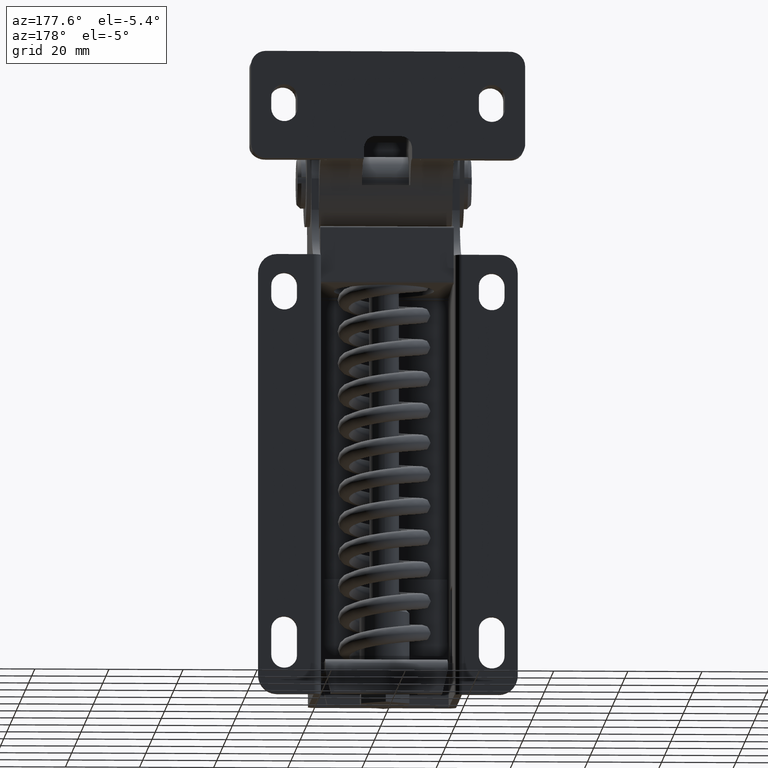
[diagram: clean part render]
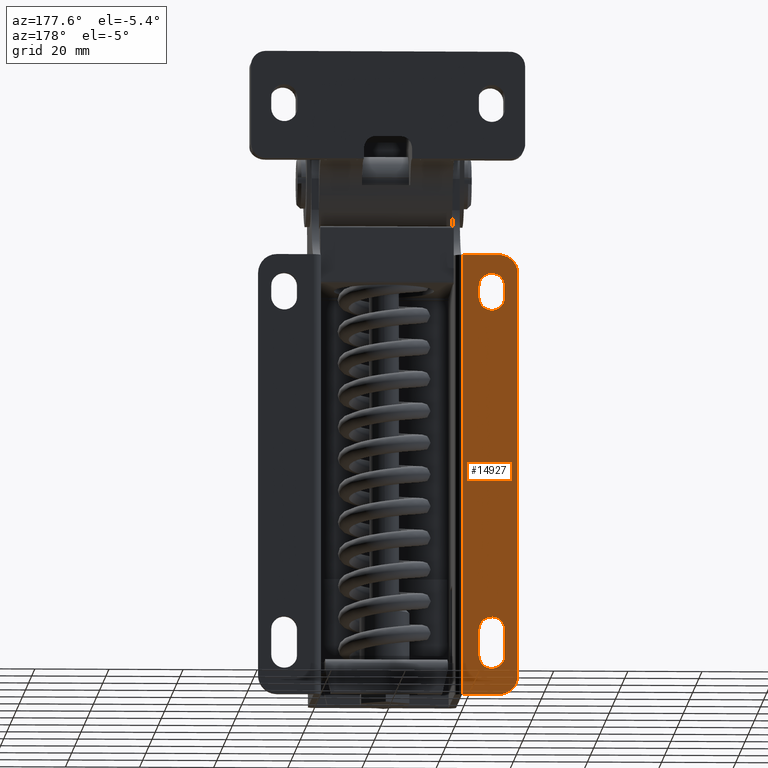
[diagram: same view with one face highlighted and labeled with its STEP entity id]
A machine part, auxiliary view. The second image highlights one B-rep face of the part: STEP entity #14927.
In plain terms, the highlighted face is a freeform B-spline surface patch.
Its self-contained STEP definition (entity closure, byte-faithful):
#13039=CARTESIAN_POINT('',(-20.0,28.000022946517149,-22.0));
#13040=VERTEX_POINT('',#13039);
#13061=CARTESIAN_POINT('',(-20.0,28.000022946517149,-140.999985000000010));
#13062=VERTEX_POINT('',#13061);
#13076=CARTESIAN_POINT('',(-20.0,28.000022946517149,-22.0));
#13077=CARTESIAN_POINT('',(-20.0,28.000022946517149,-140.999985000000010));
#13078=QUASI_UNIFORM_CURVE('',1,(#13076,#13077),.UNSPECIFIED.,.F.,.U.);
#13079=EDGE_CURVE('',#13040,#13062,#13078,.T.);
#13400=CARTESIAN_POINT('',(-30.0,28.000022946517149,-22.0));
#13401=VERTEX_POINT('',#13400);
#13407=CARTESIAN_POINT('',(-35.0,28.000022946517149,-27.0));
#13408=VERTEX_POINT('',#13407);
#13409=CARTESIAN_POINT('',(-34.999999999999993,28.000022946517149,-27.0));
#13410=CARTESIAN_POINT('',(-34.999999999999993,28.000022946517159,-22.000000000000007));
#13411=CARTESIAN_POINT('',(-30.0,28.000022946517149,-22.0));
#13419=(BOUNDED_CURVE()B_SPLINE_CURVE(2,(#13409,#13410,#13411),.UNSPECIFIED.,.F.,.U.)CURVE()GEOMETRIC_REPRESENTATION_ITEM()QUASI_UNIFORM_CURVE()RATIONAL_B_SPLINE_CURVE((1.0,0.707106781186548,1.0))REPRESENTATION_ITEM(''));
#13420=EDGE_CURVE('',#13408,#13401,#13419,.T.);
#13461=CARTESIAN_POINT('',(-35.0,28.000022946517149,-135.999985000000010));
#13462=VERTEX_POINT('',#13461);
#13468=CARTESIAN_POINT('',(-30.0,28.000022946517149,-140.999985000000010));
#13469=VERTEX_POINT('',#13468);
#13470=CARTESIAN_POINT('',(-30.0,28.000022946517149,-140.999985000000010));
#13471=CARTESIAN_POINT('',(-34.999999999999993,28.000022946517159,-140.999984999999980));
#13472=CARTESIAN_POINT('',(-34.999999999999993,28.000022946517149,-135.999985000000010));
#13480=(BOUNDED_CURVE()B_SPLINE_CURVE(2,(#13470,#13471,#13472),.UNSPECIFIED.,.F.,.U.)CURVE()GEOMETRIC_REPRESENTATION_ITEM()QUASI_UNIFORM_CURVE()RATIONAL_B_SPLINE_CURVE((1.0,0.707106781186548,1.0))REPRESENTATION_ITEM(''));
#13481=EDGE_CURVE('',#13469,#13462,#13480,.T.);
#13850=CARTESIAN_POINT('',(-24.500000000000000,28.000022946517149,-33.499999389134750));
#13851=VERTEX_POINT('',#13850);
#13857=CARTESIAN_POINT('',(-31.500000000000000,28.000022946517149,-33.500000000000000));
#13858=VERTEX_POINT('',#13857);
#13859=CARTESIAN_POINT('',(-31.500000000000000,28.000022946517149,-33.500000000000000));
#13860=CARTESIAN_POINT('',(-31.500000000000000,28.000022946517149,-35.520726077911526));
#13861=CARTESIAN_POINT('',(-29.749999823658388,28.000022946517149,-36.531089015056402));
#13862=CARTESIAN_POINT('',(-27.999999647316777,28.000022946517149,-37.541451952201285));
#13863=CARTESIAN_POINT('',(-26.249999647316798,28.000022946517149,-36.531088709623774));
#13864=CARTESIAN_POINT('',(-24.499999647316809,28.000022946517149,-35.520725467046248));
#13865=CARTESIAN_POINT('',(-24.500000000000050,28.000022946517149,-33.499999389134750));
#13873=(BOUNDED_CURVE()B_SPLINE_CURVE(2,(#13859,#13860,#13861,#13862,#13863,#13864,#13865),.UNSPECIFIED.,.F.,.U.)B_SPLINE_CURVE_WITH_KNOTS((3,2,2,3),(0.0,0.333333333333333,0.666666666666667,1.0),.UNSPECIFIED.)CURVE()GEOMETRIC_REPRESENTATION_ITEM()RATIONAL_B_SPLINE_CURVE((1.0,0.866025389240028,1.0,0.866025389240028,1.0,0.866025389240028,1.0))REPRESENTATION_ITEM(''));
#13874=EDGE_CURVE('',#13858,#13851,#13873,.T.);
#13897=CARTESIAN_POINT('',(-31.500000000000000,28.000022946517149,-30.500000305432749));
#13898=VERTEX_POINT('',#13897);
#13899=CARTESIAN_POINT('',(-31.500000000000000,28.000022946517149,-30.500000305432749));
#13900=CARTESIAN_POINT('',(-31.500000000000000,28.000022946517149,-33.500000000000000));
#13901=QUASI_UNIFORM_CURVE('',1,(#13899,#13900),.UNSPECIFIED.,.F.,.U.);
#13902=EDGE_CURVE('',#13898,#13858,#13901,.T.);
#13950=CARTESIAN_POINT('',(-24.500000000000000,28.000022946517149,-30.500000000000000));
#13951=VERTEX_POINT('',#13950);
#13952=CARTESIAN_POINT('',(-24.500000000000000,28.000022946517149,-30.500000000000000));
#13953=CARTESIAN_POINT('',(-24.500000000000004,28.000022946517156,-28.479273989962369));
#13954=CARTESIAN_POINT('',(-26.250000088170840,28.000022946517149,-27.468911035849011));
#13955=CARTESIAN_POINT('',(-28.000000176341686,28.000022946517156,-26.458548081735653));
#13956=CARTESIAN_POINT('',(-29.750000176341679,28.000022946517149,-27.468911188565389));
#13957=CARTESIAN_POINT('',(-31.500000176341679,28.000022946517156,-28.479274295395118));
#13958=CARTESIAN_POINT('',(-31.499999999999989,28.000022946517149,-30.500000305432749));
#13966=(BOUNDED_CURVE()B_SPLINE_CURVE(2,(#13952,#13953,#13954,#13955,#13956,#13957,#13958),.UNSPECIFIED.,.F.,.U.)B_SPLINE_CURVE_WITH_KNOTS((3,2,2,3),(0.0,0.333333333333333,0.666666666666667,1.0),.UNSPECIFIED.)CURVE()GEOMETRIC_REPRESENTATION_ITEM()RATIONAL_B_SPLINE_CURVE((1.0,0.866025396512230,1.0,0.866025396512230,1.0,0.866025396512230,1.0))REPRESENTATION_ITEM(''));
#13967=EDGE_CURVE('',#13951,#13898,#13966,.T.);
#13988=CARTESIAN_POINT('',(-24.500000000000000,28.000022946517149,-33.499999389134750));
#13989=CARTESIAN_POINT('',(-24.500000000000000,28.000022946517149,-30.500000000000000));
#13990=QUASI_UNIFORM_CURVE('',1,(#13988,#13989),.UNSPECIFIED.,.F.,.U.);
#13991=EDGE_CURVE('',#13851,#13951,#13990,.T.);
#14404=CARTESIAN_POINT('',(-24.500000000000000,28.000022946517149,-130.499984389134990));
#14405=VERTEX_POINT('',#14404);
#14411=CARTESIAN_POINT('',(-31.500000000000000,28.000022946517149,-130.499985000000010));
#14412=VERTEX_POINT('',#14411);
#14413=CARTESIAN_POINT('',(-31.500000000000000,28.000022946517149,-130.499985000000010));
#14414=CARTESIAN_POINT('',(-31.500000000000004,28.000022946517152,-132.520711077911470));
#14415=CARTESIAN_POINT('',(-29.749999823658460,28.000022946517149,-133.531074015056390));
#14416=CARTESIAN_POINT('',(-27.999999647316923,28.000022946517152,-134.541436952201340));
#14417=CARTESIAN_POINT('',(-26.249999647316940,28.000022946517149,-133.531073709623910));
#14418=CARTESIAN_POINT('',(-24.499999647316951,28.000022946517152,-132.520710467046460));
#14419=CARTESIAN_POINT('',(-24.500000000000050,28.000022946517149,-130.499984389134990));
#14427=(BOUNDED_CURVE()B_SPLINE_CURVE(2,(#14413,#14414,#14415,#14416,#14417,#14418,#14419),.UNSPECIFIED.,.F.,.U.)B_SPLINE_CURVE_WITH_KNOTS((3,2,2,3),(0.0,0.333333333333333,0.666666666666667,1.0),.UNSPECIFIED.)CURVE()GEOMETRIC_REPRESENTATION_ITEM()RATIONAL_B_SPLINE_CURVE((1.0,0.866025389240034,1.0,0.866025389240034,1.0,0.866025389240034,1.0))REPRESENTATION_ITEM(''));
#14428=EDGE_CURVE('',#14412,#14405,#14427,.T.);
#14451=CARTESIAN_POINT('',(-31.500000000000000,28.000022946517149,-123.499985305432600));
#14452=VERTEX_POINT('',#14451);
#14453=CARTESIAN_POINT('',(-31.500000000000000,28.000022946517149,-123.499985305432600));
#14454=CARTESIAN_POINT('',(-31.500000000000000,28.000022946517149,-130.499985000000010));
#14455=QUASI_UNIFORM_CURVE('',1,(#14453,#14454),.UNSPECIFIED.,.F.,.U.);
#14456=EDGE_CURVE('',#14452,#14412,#14455,.T.);
#14504=CARTESIAN_POINT('',(-24.500000000000000,28.000022946517149,-123.499985000000000));
#14505=VERTEX_POINT('',#14504);
#14506=CARTESIAN_POINT('',(-24.500000000000000,28.000022946517149,-123.499985000000000));
#14507=CARTESIAN_POINT('',(-24.500000000000000,28.000022946517156,-121.479258989962450));
#14508=CARTESIAN_POINT('',(-26.250000088170800,28.000022946517149,-120.468896035849000));
#14509=CARTESIAN_POINT('',(-28.000000176341594,28.000022946517156,-119.458533081735740));
#14510=CARTESIAN_POINT('',(-29.750000176341590,28.000022946517149,-120.468896188565400));
#14511=CARTESIAN_POINT('',(-31.500000176341583,28.000022946517156,-121.479259295395070));
#14512=CARTESIAN_POINT('',(-31.499999999999989,28.000022946517149,-123.499985305432600));
#14520=(BOUNDED_CURVE()B_SPLINE_CURVE(2,(#14506,#14507,#14508,#14509,#14510,#14511,#14512),.UNSPECIFIED.,.F.,.U.)B_SPLINE_CURVE_WITH_KNOTS((3,2,2,3),(0.0,0.333333333333333,0.666666666666667,1.0),.UNSPECIFIED.)CURVE()GEOMETRIC_REPRESENTATION_ITEM()RATIONAL_B_SPLINE_CURVE((1.0,0.866025396512234,1.0,0.866025396512234,1.0,0.866025396512234,1.0))REPRESENTATION_ITEM(''));
#14521=EDGE_CURVE('',#14505,#14452,#14520,.T.);
#14542=CARTESIAN_POINT('',(-24.500000000000000,28.000022946517149,-130.499984389134990));
#14543=CARTESIAN_POINT('',(-24.500000000000000,28.000022946517149,-123.499985000000000));
#14544=QUASI_UNIFORM_CURVE('',1,(#14542,#14543),.UNSPECIFIED.,.F.,.U.);
#14545=EDGE_CURVE('',#14405,#14505,#14544,.T.);
#14656=CARTESIAN_POINT('',(-35.0,28.000022946517149,-27.0));
#14657=CARTESIAN_POINT('',(-35.0,28.000022946517149,-135.999985000000010));
#14658=QUASI_UNIFORM_CURVE('',1,(#14656,#14657),.UNSPECIFIED.,.F.,.U.);
#14659=EDGE_CURVE('',#13408,#13462,#14658,.T.);
#14894=CARTESIAN_POINT('',(-35.749249970927089,28.000022946517099,-16.055950979895059));
#14895=CARTESIAN_POINT('',(-19.250749626741559,28.000022946517099,-16.055950979895059));
#14896=CARTESIAN_POINT('',(-35.749249970927089,28.000022946517099,-146.944037211933190));
#14897=CARTESIAN_POINT('',(-19.250749626741559,28.000022946517099,-146.944037211933190));
#14898=B_SPLINE_SURFACE_WITH_KNOTS('',1,1,((#14894,#14896),(#14895,#14897)),.UNSPECIFIED.,.F.,.F.,.U.,(2,2),(2,2),(0.0,16.498500344185530),(0.0,130.888086232038210),.UNSPECIFIED.);
#14899=CARTESIAN_POINT('',(-20.0,28.000022946517149,-22.0));
#14900=CARTESIAN_POINT('',(-30.0,28.000022946517149,-22.0));
#14901=QUASI_UNIFORM_CURVE('',1,(#14899,#14900),.UNSPECIFIED.,.F.,.U.);
#14902=EDGE_CURVE('',#13040,#13401,#14901,.T.);
#14903=ORIENTED_EDGE('',*,*,#14902,.F.);
#14904=ORIENTED_EDGE('',*,*,#13079,.T.);
#14905=CARTESIAN_POINT('',(-30.0,28.000022946517149,-140.999985000000010));
#14906=CARTESIAN_POINT('',(-20.0,28.000022946517149,-140.999985000000010));
#14907=QUASI_UNIFORM_CURVE('',1,(#14905,#14906),.UNSPECIFIED.,.F.,.U.);
#14908=EDGE_CURVE('',#13469,#13062,#14907,.T.);
#14909=ORIENTED_EDGE('',*,*,#14908,.F.);
#14910=ORIENTED_EDGE('',*,*,#13481,.T.);
#14911=ORIENTED_EDGE('',*,*,#14659,.F.);
#14912=ORIENTED_EDGE('',*,*,#13420,.T.);
#14913=EDGE_LOOP('',(#14903,#14904,#14909,#14910,#14911,#14912));
#14914=FACE_OUTER_BOUND('',#14913,.T.);
#14915=ORIENTED_EDGE('',*,*,#14428,.T.);
#14916=ORIENTED_EDGE('',*,*,#14545,.T.);
#14917=ORIENTED_EDGE('',*,*,#14521,.T.);
#14918=ORIENTED_EDGE('',*,*,#14456,.T.);
#14919=EDGE_LOOP('',(#14915,#14916,#14917,#14918));
#14920=FACE_BOUND('',#14919,.T.);
#14921=ORIENTED_EDGE('',*,*,#13874,.T.);
#14922=ORIENTED_EDGE('',*,*,#13991,.T.);
#14923=ORIENTED_EDGE('',*,*,#13967,.T.);
#14924=ORIENTED_EDGE('',*,*,#13902,.T.);
#14925=EDGE_LOOP('',(#14921,#14922,#14923,#14924));
#14926=FACE_BOUND('',#14925,.T.);
#14927=ADVANCED_FACE('',(#14914,#14920,#14926),#14898,.T.);